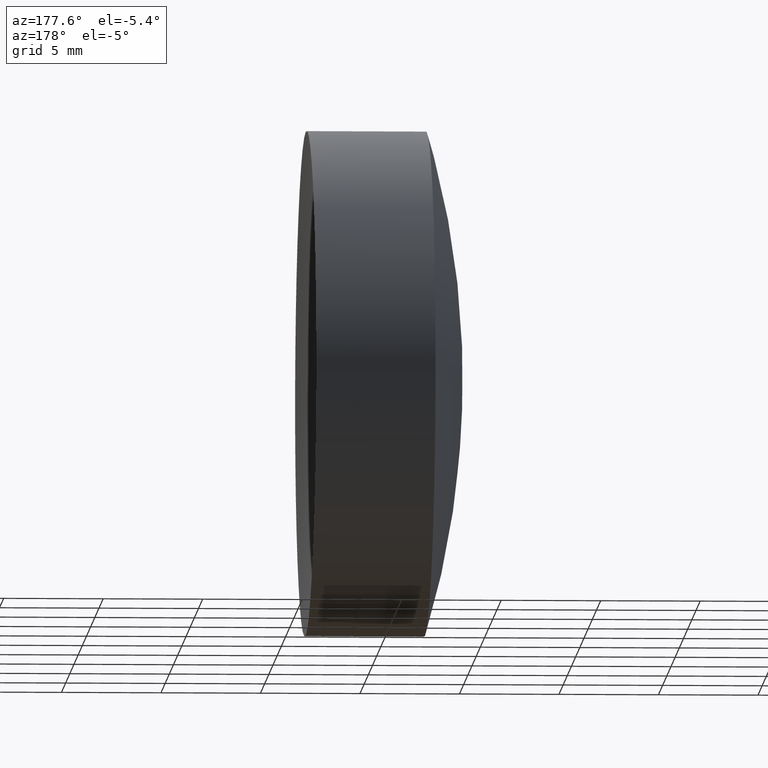
[diagram: clean part render]
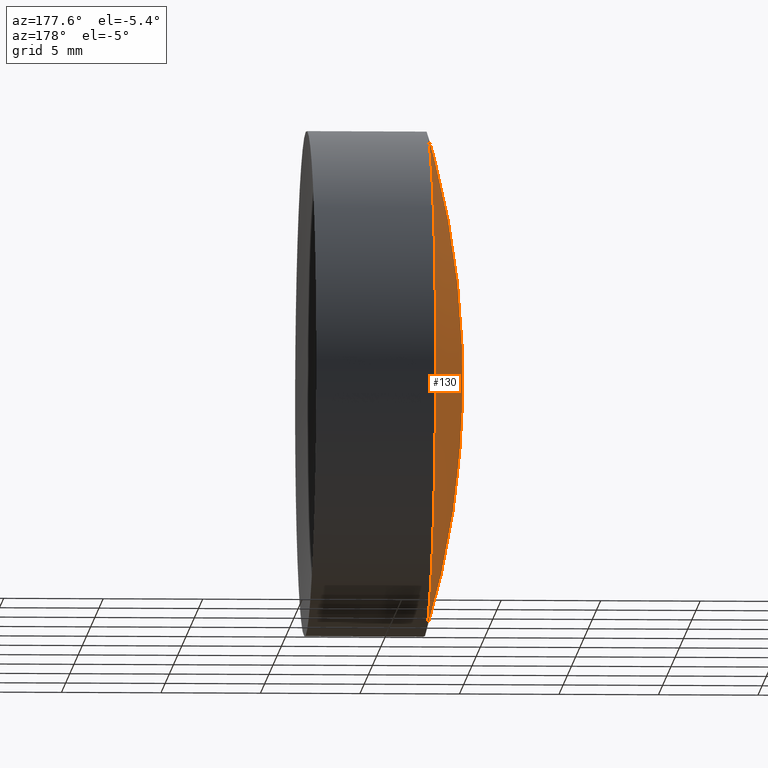
[diagram: same view with one face highlighted and labeled with its STEP entity id]
A machine part, auxiliary view. The second image highlights one B-rep face of the part: STEP entity #130.
In plain terms, the highlighted spherical surface has radius 43.95 mm.
Its self-contained STEP definition (entity closure, byte-faithful):
#9 = EDGE_CURVE ( 'NONE', #119, #262, #71, .T. ) ;
#28 = CARTESIAN_POINT ( 'NONE',  ( 99.85415925380742400, 0.0000000000000000000, 1.870129949146768500E-014 ) ) ;
#30 = DIRECTION ( 'NONE',  ( 0.0000000000000000000, -1.000000000000000000, -1.224646799147353200E-016 ) ) ;
#39 = AXIS2_PLACEMENT_3D ( 'NONE', #169, #42, #304 ) ;
#42 = DIRECTION ( 'NONE',  ( -1.000000000000000000, -0.0000000000000000000, -0.0000000000000000000 ) ) ;
#46 = AXIS2_PLACEMENT_3D ( 'NONE', #54, #91, #80 ) ;
#54 = CARTESIAN_POINT ( 'NONE',  ( 99.85415925380742400, 0.0000000000000000000, 1.870129949146768500E-014 ) ) ;
#60 = VERTEX_POINT ( 'NONE', #136 ) ;
#71 = CIRCLE ( 'NONE', #39, 12.69999999999999400 ) ;
#75 = ORIENTED_EDGE ( 'NONE', *, *, #9, .T. ) ;
#80 = DIRECTION ( 'NONE',  ( 0.0000000000000000000, 0.0000000000000000000, 1.000000000000000000 ) ) ;
#91 = DIRECTION ( 'NONE',  ( 0.0000000000000000000, 1.000000000000000000, -0.0000000000000000000 ) ) ;
#119 = VERTEX_POINT ( 'NONE', #277 ) ;
#130 = ADVANCED_FACE ( 'NONE', ( #337 ), #205, .T. ) ;
#136 = CARTESIAN_POINT ( 'NONE',  ( 55.90415925380741400, 0.0000000000000000000, 1.601013815034137300E-014 ) ) ;
#147 = CARTESIAN_POINT ( 'NONE',  ( 99.85415925380742400, 0.0000000000000000000, 1.870129949146768500E-014 ) ) ;
#155 = CIRCLE ( 'NONE', #252, 43.95000000000000300 ) ;
#169 = CARTESIAN_POINT ( 'NONE',  ( 57.77907755454032200, 0.0000000000000000000, 0.0000000000000000000 ) ) ;
#181 = ORIENTED_EDGE ( 'NONE', *, *, #330, .F. ) ;
#184 = EDGE_CURVE ( 'NONE', #262, #60, #340, .T. ) ;
#205 = SPHERICAL_SURFACE ( 'NONE', #314, 43.95000000000000300 ) ;
#211 = CARTESIAN_POINT ( 'NONE',  ( 57.77907755454032900, 0.0000000000000000000, -12.69999999999997600 ) ) ;
#238 = ORIENTED_EDGE ( 'NONE', *, *, #184, .T. ) ;
#247 = EDGE_LOOP ( 'NONE', ( #181, #75, #238 ) ) ;
#251 = DIRECTION ( 'NONE',  ( 0.0000000000000000000, 1.224646799147353200E-016, -1.000000000000000000 ) ) ;
#252 = AXIS2_PLACEMENT_3D ( 'NONE', #28, #30, #251 ) ;
#262 = VERTEX_POINT ( 'NONE', #211 ) ;
#277 = CARTESIAN_POINT ( 'NONE',  ( 57.77907755454032900, -1.555301434917135900E-015, 12.69999999999999600 ) ) ;
#280 = DIRECTION ( 'NONE',  ( 0.0000000000000000000, 0.0000000000000000000, -1.000000000000000000 ) ) ;
#304 = DIRECTION ( 'NONE',  ( 0.0000000000000000000, 0.0000000000000000000, 1.000000000000000000 ) ) ;
#306 = DIRECTION ( 'NONE',  ( -0.0000000000000000000, -1.000000000000000000, -0.0000000000000000000 ) ) ;
#314 = AXIS2_PLACEMENT_3D ( 'NONE', #147, #306, #280 ) ;
#330 = EDGE_CURVE ( 'NONE', #119, #60, #155, .T. ) ;
#337 = FACE_OUTER_BOUND ( 'NONE', #247, .T. ) ;
#340 = CIRCLE ( 'NONE', #46, 43.95000000000000300 ) ;